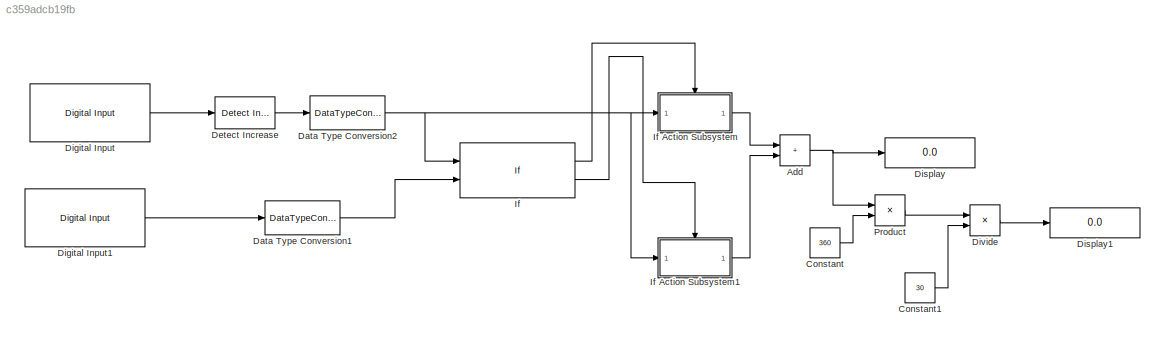
MODEL slx_c359adcb19fb
KIND model
CONFIG AbsTol = auto
CONFIG EnableMultiTasking = on
CONFIG FixedStep = 0.001
CONFIG MaxStep = auto
CONFIG MinStep = auto
CONFIG RelTol = 1e-3
CONFIG SampleTimeConstraint = Unconstrained
CONFIG SolverName = FixedStepAuto
CONFIG StartTime = 0.0
CONFIG StopTime = 100.0
BLOCK [Sum] Add
  IconShape = rectangular
  Ports = [2, 1]
BLOCK [Constant] Constant
  Value = 360
BLOCK [Constant] Constant1
  Value = 30
BLOCK [DataTypeConversion] Data Type Conversion1
  OutDataTypeStr = int8
  RndMeth = Floor
  SaturateOnIntegerOverflow = off
BLOCK [DataTypeConversion] Data Type Conversion2
  OutDataTypeStr = int8
  RndMeth = Floor
  SaturateOnIntegerOverflow = off
BLOCK [Reference] Detect Increase  REF=simulink/Logic and Bit
Operations/Detect
Increase
  Ports = [1, 1]
  SourceBlock = simulink/Logic and Bit\nOperations/Detect\nIncrease
  SourceProductBaseCode = SL
  SourceType = Detect Increase
BLOCK [Reference] Digital Input  REF=arduinolib/Digital Input
  Ports = [0, 1]
  SourceBlock = arduinolib/Digital Input
  SourceProductBaseCode = ARDUINO
  SourceType = Arduino Digital Input
BLOCK [Reference] Digital Input1  REF=arduinolib/Digital Input
  Ports = [0, 1]
  SourceBlock = arduinolib/Digital Input
  SourceProductBaseCode = ARDUINO
  SourceType = Arduino Digital Input
BLOCK [Display] Display
  Decimation = 1
  Ports = [1]
BLOCK [Display] Display1
  Decimation = 1
  Ports = [1]
BLOCK [Product] Divide
  Inputs = */
  Ports = [2, 1]
BLOCK [If] If
  ElseIfExpressions = u1 >0  & u2==1
  IfExpression = u1 >0 & u2==0
  NumInputs = 2
  Ports = [2, 2]
  ShowElse = off
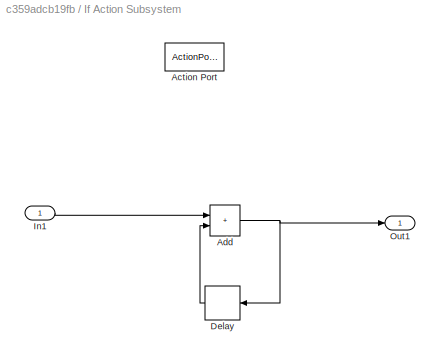
BLOCK [SubSystem] If Action Subsystem
  Ports = [1, 1, 0, 0, 0, 0, 0, 1]
  RequestExecContextInheritance = off
  TreatAsAtomicUnit = on
BLOCK [ActionPort] If Action Subsystem/Action Port
  ActionPortLabel = if(u1 >0 & u2==0)
BLOCK [Sum] If Action Subsystem/Add
  IconShape = rectangular
  Ports = [2, 1]
BLOCK [Delay] If Action Subsystem/Delay
  DelayLength = 1
  InitialCondition = 0
  InputPortMap = u0
  Ports = [1, 1]
BLOCK [Inport] If Action Subsystem/In1
BLOCK [Outport] If Action Subsystem/Out1
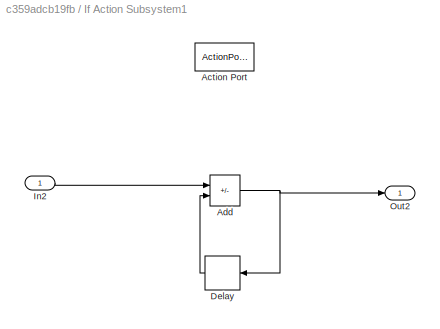
BLOCK [SubSystem] If Action Subsystem1
  Ports = [1, 1, 0, 0, 0, 0, 0, 1]
  RequestExecContextInheritance = off
  TreatAsAtomicUnit = on
BLOCK [ActionPort] If Action Subsystem1/Action Port
  ActionPortLabel = elseif( u1 >0  & u2==1)
BLOCK [Sum] If Action Subsystem1/Add
  IconShape = rectangular
  Inputs = -+
  Ports = [2, 1]
BLOCK [Delay] If Action Subsystem1/Delay
  DelayLength = 1
  InitialCondition = 0
  InputPortMap = u0
  Ports = [1, 1]
BLOCK [Inport] If Action Subsystem1/In2
BLOCK [Outport] If Action Subsystem1/Out2
BLOCK [Product] Product
  Ports = [2, 1]
NET Add:1 -> Display:1, Product:1
LINE Constant1:1 -> Divide:2
LINE Constant:1 -> Product:2
LINE Data Type Conversion1:1 -> If:2
NET Data Type Conversion2:1 -> If Action Subsystem1:1, If Action Subsystem:1, If:1
LINE Detect Increase:1 -> Data Type Conversion2:1
LINE Digital Input1:1 -> Data Type Conversion1:1
LINE Digital Input:1 -> Detect Increase:1
LINE Divide:1 -> Display1:1
NET If Action Subsystem/Add:1 -> If Action Subsystem/Delay:1, If Action Subsystem/Out1:1
LINE If Action Subsystem/Delay:1 -> If Action Subsystem/Add:2
LINE If Action Subsystem/In1:1 -> If Action Subsystem/Add:1
NET If Action Subsystem1/Add:1 -> If Action Subsystem1/Delay:1, If Action Subsystem1/Out2:1
LINE If Action Subsystem1/Delay:1 -> If Action Subsystem1/Add:2
LINE If Action Subsystem1/In2:1 -> If Action Subsystem1/Add:1
LINE If Action Subsystem1:1 -> Add:2
LINE If Action Subsystem:1 -> Add:1
LINE If:1 -> If Action Subsystem:ifaction
LINE If:2 -> If Action Subsystem1:ifaction
LINE Product:1 -> Divide:1
note: NET lines group one-source signal fan-out (src -> all destinations, sorted); 1:1 wires keep LINE
